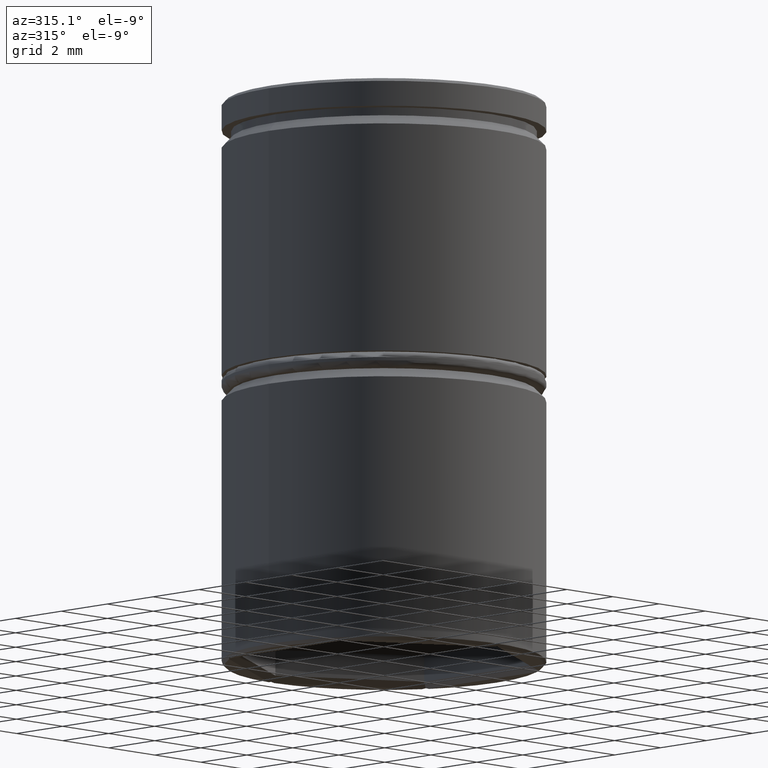
[diagram: clean part render]
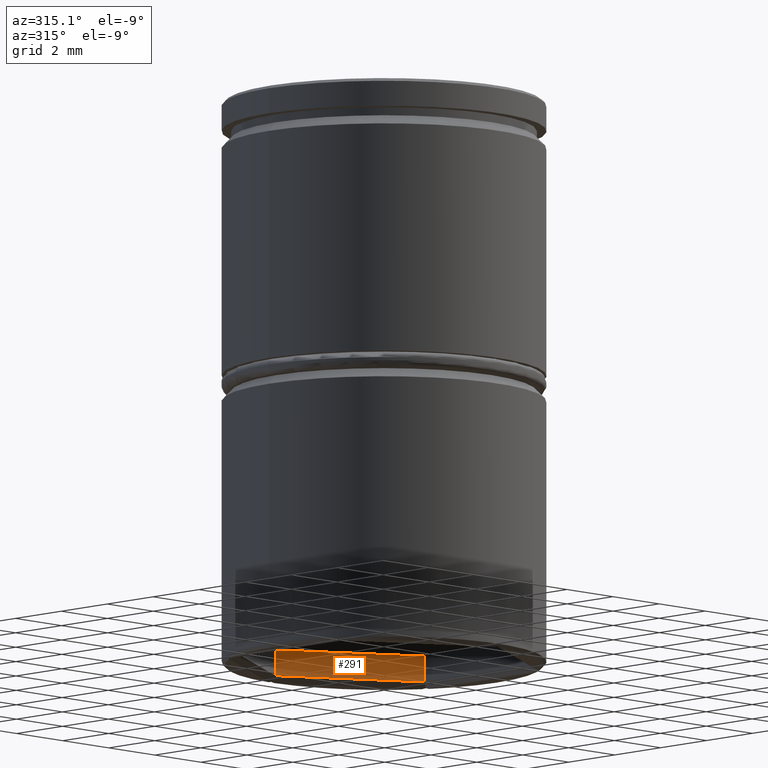
[diagram: same view with one face highlighted and labeled with its STEP entity id]
A machine part, auxiliary view. The second image highlights one B-rep face of the part: STEP entity #291.
In plain terms, the highlighted planar face has unit normal (0.5, 0.866, -0).
Its self-contained STEP definition (entity closure, byte-faithful):
#19 = ORIENTED_EDGE ( 'NONE', *, *, #1027, .F. ) ;
#41 = CARTESIAN_POINT ( 'NONE',  ( 4.099999999999990763, 2.367136103677458969, -17.29999999999999716 ) ) ;
#50 = DIRECTION ( 'NONE',  ( -0.000000000000000000, -0.000000000000000000, -1.000000000000000000 ) ) ;
#55 = CARTESIAN_POINT ( 'NONE',  ( 0.000000000000000000, 4.734272207354920603, -16.50000000000000000 ) ) ;
#109 = EDGE_CURVE ( 'NONE', #278, #692, #609, .T. ) ;
#165 = EDGE_CURVE ( 'NONE', #278, #421, #1120, .T. ) ;
#174 = LINE ( 'NONE', #1033, #902 ) ;
#178 = CARTESIAN_POINT ( 'NONE',  ( 0.000000000000000000, 4.734272207354920603, -17.29999999999999716 ) ) ;
#187 = CARTESIAN_POINT ( 'NONE',  ( 0.000000000000000000, 4.734272207354920603, -16.50000000000000000 ) ) ;
#278 = VERTEX_POINT ( 'NONE', #55 ) ;
#281 = DIRECTION ( 'NONE',  ( -0.8660254037844384856, 0.5000000000000002220, 0.000000000000000000 ) ) ;
#291 = ADVANCED_FACE ( 'NONE', ( #481 ), #361, .F. ) ;
#298 = DIRECTION ( 'NONE',  ( 0.5000000000000003331, 0.8660254037844385966, -0.000000000000000000 ) ) ;
#361 = PLANE ( 'NONE',  #803 ) ;
#421 = VERTEX_POINT ( 'NONE', #178 ) ;
#471 = VECTOR ( 'NONE', #1135, 1000.000000000000000 ) ;
#481 = FACE_OUTER_BOUND ( 'NONE', #852, .T. ) ;
#542 = ORIENTED_EDGE ( 'NONE', *, *, #165, .T. ) ;
#609 = LINE ( 'NONE', #1039, #1011 ) ;
#619 = DIRECTION ( 'NONE',  ( 0.8660254037844384856, -0.5000000000000002220, 0.000000000000000000 ) ) ;
#676 = CARTESIAN_POINT ( 'NONE',  ( 4.099999999999990763, 2.367136103677458969, -17.29999999999999716 ) ) ;
#692 = VERTEX_POINT ( 'NONE', #1076 ) ;
#803 = AXIS2_PLACEMENT_3D ( 'NONE', #187, #298, #281 ) ;
#811 = ORIENTED_EDGE ( 'NONE', *, *, #109, .F. ) ;
#852 = EDGE_LOOP ( 'NONE', ( #542, #1199, #19, #811 ) ) ;
#873 = EDGE_CURVE ( 'NONE', #421, #1194, #1314, .T. ) ;
#902 = VECTOR ( 'NONE', #50, 1000.000000000000000 ) ;
#915 = CARTESIAN_POINT ( 'NONE',  ( 0.000000000000000000, 4.734272207354920603, -16.50000000000000000 ) ) ;
#1011 = VECTOR ( 'NONE', #619, 1000.000000000000227 ) ;
#1027 = EDGE_CURVE ( 'NONE', #692, #1194, #174, .T. ) ;
#1033 = CARTESIAN_POINT ( 'NONE',  ( 4.099999999999990763, 2.367136103677458969, -16.50000000000000000 ) ) ;
#1039 = CARTESIAN_POINT ( 'NONE',  ( 0.000000000000000000, 4.734272207354920603, -16.50000000000000000 ) ) ;
#1076 = CARTESIAN_POINT ( 'NONE',  ( 4.099999999999990763, 2.367136103677458969, -16.50000000000000000 ) ) ;
#1120 = LINE ( 'NONE', #915, #471 ) ;
#1135 = DIRECTION ( 'NONE',  ( -0.000000000000000000, -0.000000000000000000, -1.000000000000000000 ) ) ;
#1194 = VERTEX_POINT ( 'NONE', #41 ) ;
#1199 = ORIENTED_EDGE ( 'NONE', *, *, #873, .T. ) ;
#1260 = VECTOR ( 'NONE', #1294, 1000.000000000000000 ) ;
#1294 = DIRECTION ( 'NONE',  ( 0.8660254037844384856, -0.5000000000000002220, 0.000000000000000000 ) ) ;
#1314 = LINE ( 'NONE', #676, #1260 ) ;